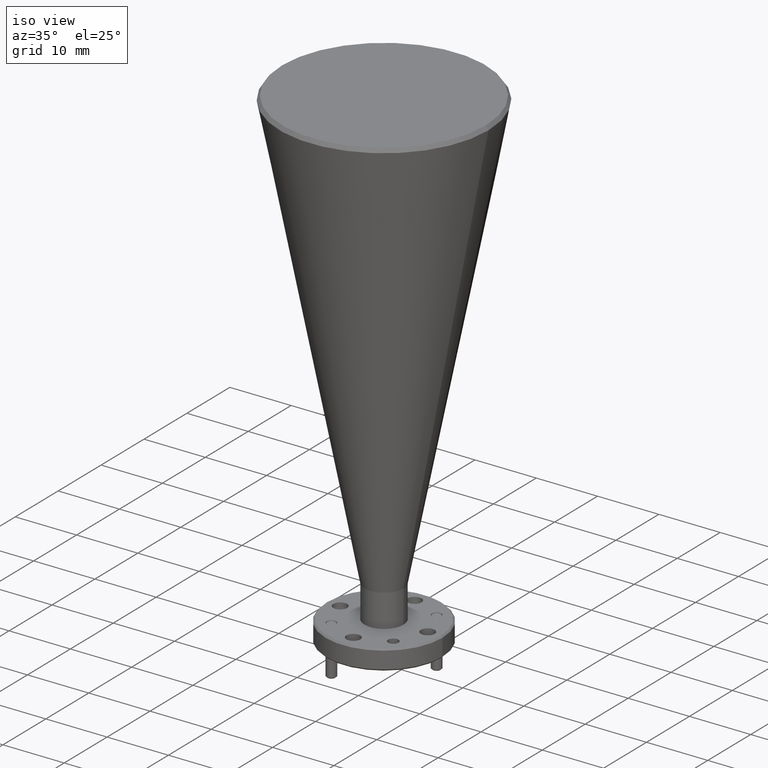
[diagram: clean part render]
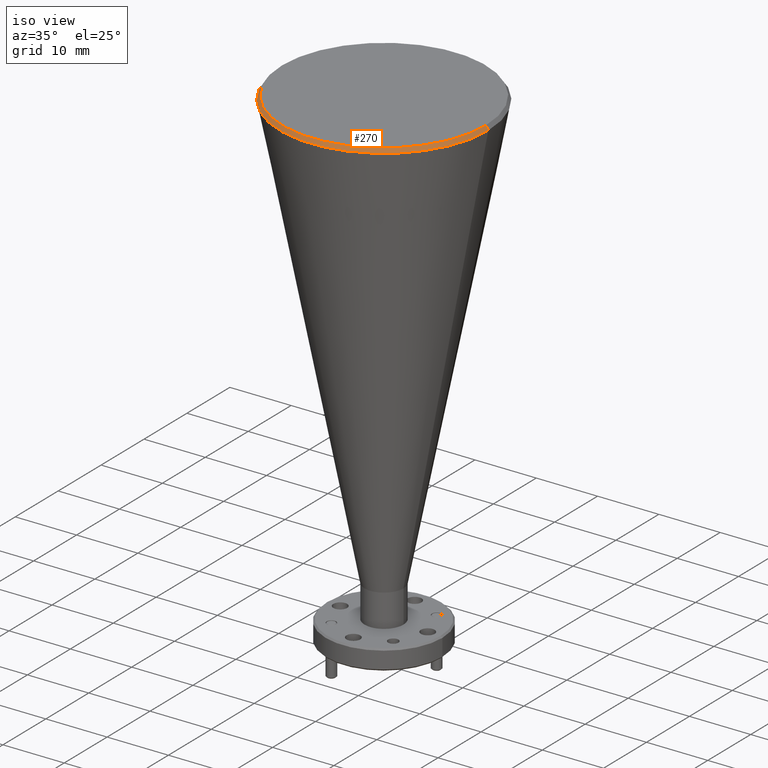
[diagram: same view with one face highlighted and labeled with its STEP entity id]
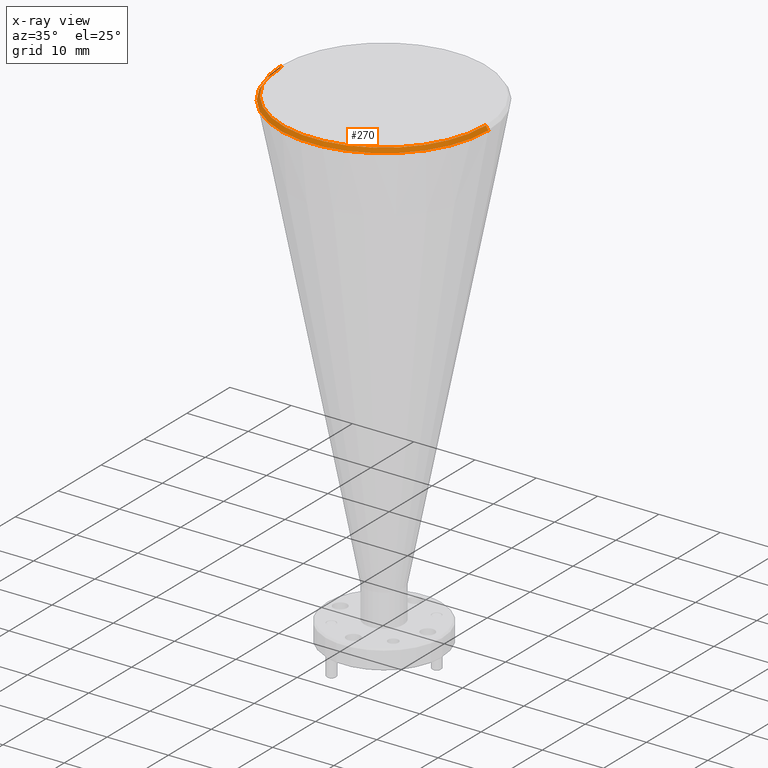
[diagram: x-ray of the same camera — body ghosted, the highlighted face saturated]
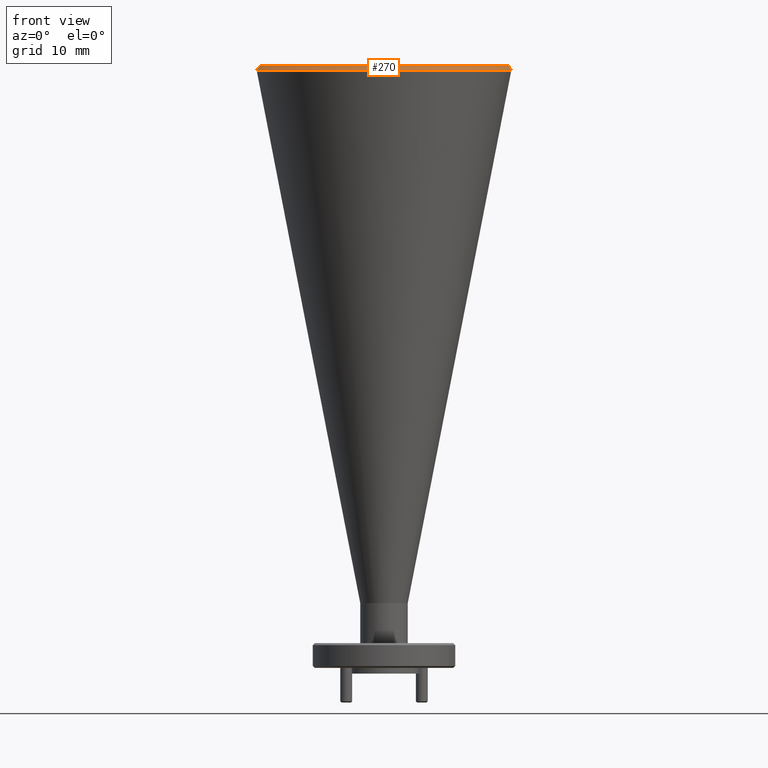
[diagram: same view with one face highlighted and labeled with its STEP entity id]
A machine part, iso view. The second image highlights one B-rep face of the part: STEP entity #270.
The next image is the same camera in x-ray: the body ghosted, the highlighted face saturated — about 0% of this face is hidden behind the body in this view.
A second angle (front view) of the same face is appended — the face is thin or edge-on in the first view.
In plain terms, the highlighted conical surface has half-angle 34 deg.
Its self-contained STEP definition (entity closure, byte-faithful):
#10 = CARTESIAN_POINT ( 'NONE',  ( 1.199041434672055000, 1.390276906475814300, 2.643859347447791400 ) ) ;
#23 = VECTOR ( 'NONE', #455, 39.37007874015748900 ) ;
#80 = CARTESIAN_POINT ( 'NONE',  ( 0.5288116595564684700, 1.390276906475814300, 2.619318667861598700 ) ) ;
#81 = AXIS2_PLACEMENT_3D ( 'NONE', #97, #2067, #572 ) ;
#97 = CARTESIAN_POINT ( 'NONE',  ( 1.199041434672055000, 1.390276906475814300, 2.619318667861598700 ) ) ;
#158 = CARTESIAN_POINT ( 'NONE',  ( 0.5453645569464569100, 1.390276906475814300, 2.643859347447791400 ) ) ;
#198 = VECTOR ( 'NONE', #628, 39.37007874015748900 ) ;
#204 = CONICAL_SURFACE ( 'NONE', #868, 0.6536768777255980200, 0.5934119456780798700 ) ;
#209 = ORIENTED_EDGE ( 'NONE', *, *, #893, .F. ) ;
#270 = ADVANCED_FACE ( 'NONE', ( #1421 ), #204, .T. ) ;
#279 = EDGE_CURVE ( 'NONE', #655, #1208, #1371, .T. ) ;
#328 = DIRECTION ( 'NONE',  ( -0.0000000000000000000, -0.0000000000000000000, 1.000000000000000000 ) ) ;
#351 = CARTESIAN_POINT ( 'NONE',  ( 1.852718312397653200, 1.390276906475814300, 2.643859347447791400 ) ) ;
#406 = DIRECTION ( 'NONE',  ( -1.000000000000000000, 0.0000000000000000000, 0.0000000000000000000 ) ) ;
#455 = DIRECTION ( 'NONE',  ( -0.5591929034707533400, 0.0000000000000000000, -0.8290375725550371800 ) ) ;
#485 = DIRECTION ( 'NONE',  ( -1.000000000000000000, 0.0000000000000000000, 0.0000000000000000000 ) ) ;
#495 = VERTEX_POINT ( 'NONE', #2097 ) ;
#572 = DIRECTION ( 'NONE',  ( -1.000000000000000000, 0.0000000000000000000, 0.0000000000000000000 ) ) ;
#581 = CARTESIAN_POINT ( 'NONE',  ( 1.199041434672055000, 1.390276906475814300, 2.643859347447791400 ) ) ;
#628 = DIRECTION ( 'NONE',  ( 0.5591929034707533400, 6.848137993413729200E-017, -0.8290375725550371800 ) ) ;
#655 = VERTEX_POINT ( 'NONE', #1059 ) ;
#679 = CIRCLE ( 'NONE', #1074, 0.6536768777255981300 ) ;
#868 = AXIS2_PLACEMENT_3D ( 'NONE', #581, #1875, #406 ) ;
#893 = EDGE_CURVE ( 'NONE', #495, #1035, #679, .T. ) ;
#930 = ORIENTED_EDGE ( 'NONE', *, *, #1778, .T. ) ;
#1035 = VERTEX_POINT ( 'NONE', #351 ) ;
#1059 = CARTESIAN_POINT ( 'NONE',  ( 1.869271209787641200, 1.390276906475814300, 2.619318667861598700 ) ) ;
#1074 = AXIS2_PLACEMENT_3D ( 'NONE', #10, #328, #485 ) ;
#1107 = ORIENTED_EDGE ( 'NONE', *, *, #279, .F. ) ;
#1208 = VERTEX_POINT ( 'NONE', #80 ) ;
#1277 = CARTESIAN_POINT ( 'NONE',  ( 1.852718312397652900, 1.390276906475814300, 2.643859347447791400 ) ) ;
#1310 = EDGE_CURVE ( 'NONE', #1035, #655, #1933, .T. ) ;
#1371 = CIRCLE ( 'NONE', #81, 0.6702297751155862300 ) ;
#1421 = FACE_OUTER_BOUND ( 'NONE', #1791, .T. ) ;
#1607 = ORIENTED_EDGE ( 'NONE', *, *, #1310, .F. ) ;
#1768 = LINE ( 'NONE', #158, #23 ) ;
#1778 = EDGE_CURVE ( 'NONE', #495, #1208, #1768, .T. ) ;
#1791 = EDGE_LOOP ( 'NONE', ( #1607, #209, #930, #1107 ) ) ;
#1875 = DIRECTION ( 'NONE',  ( 0.0000000000000000000, 0.0000000000000000000, -1.000000000000000000 ) ) ;
#1933 = LINE ( 'NONE', #1277, #198 ) ;
#2067 = DIRECTION ( 'NONE',  ( 0.0000000000000000000, 0.0000000000000000000, -1.000000000000000000 ) ) ;
#2097 = CARTESIAN_POINT ( 'NONE',  ( 0.5453645569464568000, 1.390276906475814300, 2.643859347447791400 ) ) ;